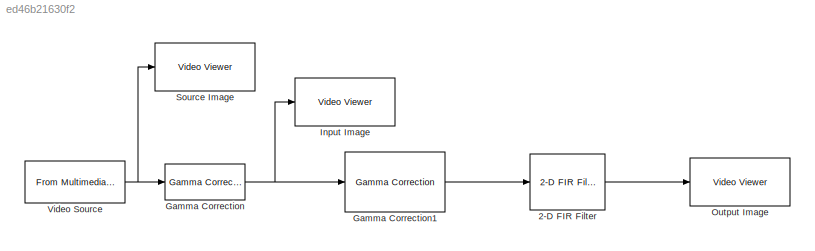
MODEL slx_ed46b21630f2
KIND model
CONFIG AbsTol = auto
CONFIG FixedStep = auto
CONFIG MaxStep = auto
CONFIG MinStep = auto
CONFIG PreLoadFcn = H = fspecial('unsharp')
CONFIG RelTol = 1e-3
CONFIG SampleTimeConstraint = Unconstrained
CONFIG Solver = FixedStepDiscrete
CONFIG SolverMode = SingleTasking
CONFIG SolverName = FixedStepDiscrete
CONFIG StartTime = 0.0
CONFIG StopTime = 320*240*100
BLOCK [Reference] 2-D FIR Filter  REF=visionfilter/2-D FIR Filter
  Ports = [1, 1]
  SourceBlock = visionfilter/2-D FIR Filter
  SourceType = 2-D FIR Filter
BLOCK [Reference] Gamma Correction  REF=visionconversions/Gamma Correction
  Ports = [1, 1]
  SourceBlock = visionconversions/Gamma Correction
  SourceType = Gamma Correction
BLOCK [Reference] Gamma Correction1  REF=visionconversions/Gamma Correction
  Ports = [1, 1]
  SourceBlock = visionconversions/Gamma Correction
  SourceType = Gamma Correction
BLOCK [Reference] Input Image  REF=visionsinks/Video Viewer
  Ports = [1]
  SourceBlock = visionsinks/Video Viewer
  SourceType = Video Viewer
  UserDataPersistent = on
BLOCK [Reference] Output Image  REF=visionsinks/Video Viewer
  Ports = [1]
  SourceBlock = visionsinks/Video Viewer
  SourceType = Video Viewer
  UserDataPersistent = on
BLOCK [Reference] Source Image  REF=visionsinks/Video Viewer
  Ports = [1]
  SourceBlock = visionsinks/Video Viewer
  SourceType = Video Viewer
  UserDataPersistent = on
BLOCK [Reference] Video Source  REF=dspvision/From Multimedia File
  Ports = [0, 1]
  SourceBlock = dspvision/From Multimedia File
  SourceType = From Multimedia File
LINE 2-D FIR Filter:1 -> Output Image:1
LINE Gamma Correction1:1 -> 2-D FIR Filter:1
NET Gamma Correction:1 -> Gamma Correction1:1, Input Image:1
NET Video Source:1 -> Gamma Correction:1, Source Image:1
note: NET lines group one-source signal fan-out (src -> all destinations, sorted); 1:1 wires keep LINE
